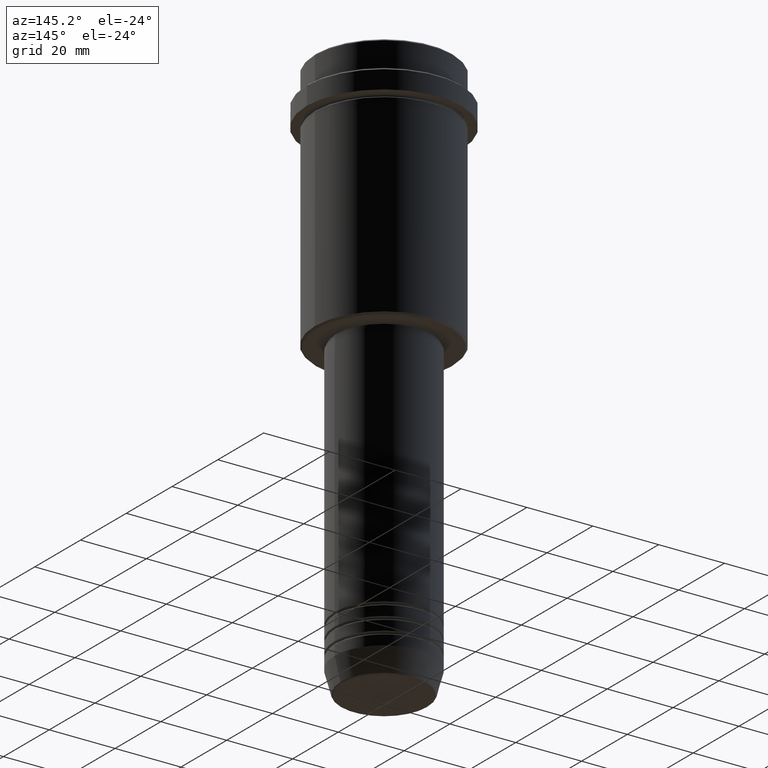
[diagram: clean part render]
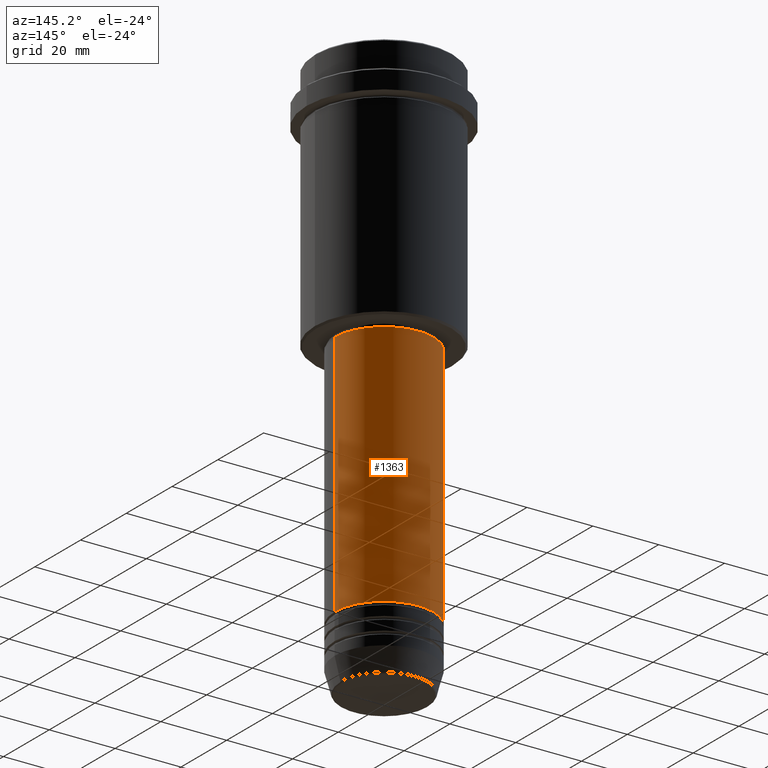
[diagram: same view with one face highlighted and labeled with its STEP entity id]
A machine part, auxiliary view. The second image highlights one B-rep face of the part: STEP entity #1363.
In plain terms, the highlighted cylindrical surface (partial cylindrical patch) has radius 15 mm, axis along (-0, -0, 1).
Its self-contained STEP definition (entity closure, byte-faithful):
#11 = VERTEX_POINT ( 'NONE', #1310 ) ;
#12 = EDGE_CURVE ( 'NONE', #790, #11, #1295, .T. ) ;
#65 = CARTESIAN_POINT ( 'NONE',  ( 15.00000000000000000, 0.000000000000000000, 0.000000000000000000 ) ) ;
#106 = ORIENTED_EDGE ( 'NONE', *, *, #12, .T. ) ;
#166 = CARTESIAN_POINT ( 'NONE',  ( -15.00000000000000000, 1.836970198721029589E-15, -76.00000000000001421 ) ) ;
#207 = DIRECTION ( 'NONE',  ( -0.000000000000000000, -0.000000000000000000, 1.000000000000000000 ) ) ;
#236 = CARTESIAN_POINT ( 'NONE',  ( -15.00000000000000000, 1.836970198721029589E-15, 0.000000000000000000 ) ) ;
#242 = AXIS2_PLACEMENT_3D ( 'NONE', #777, #335, #885 ) ;
#335 = DIRECTION ( 'NONE',  ( -0.000000000000000000, -0.000000000000000000, 1.000000000000000000 ) ) ;
#338 = VERTEX_POINT ( 'NONE', #166 ) ;
#345 = DIRECTION ( 'NONE',  ( -0.000000000000000000, -0.000000000000000000, 1.000000000000000000 ) ) ;
#351 = DIRECTION ( 'NONE',  ( 1.000000000000000000, 0.000000000000000000, 0.000000000000000000 ) ) ;
#401 = VECTOR ( 'NONE', #933, 1000.000000000000000 ) ;
#472 = CIRCLE ( 'NONE', #1277, 15.00000000000000000 ) ;
#556 = CYLINDRICAL_SURFACE ( 'NONE', #242, 15.00000000000000000 ) ;
#650 = DIRECTION ( 'NONE',  ( 1.000000000000000000, 0.000000000000000000, 0.000000000000000000 ) ) ;
#658 = VECTOR ( 'NONE', #676, 1000.000000000000000 ) ;
#676 = DIRECTION ( 'NONE',  ( -0.000000000000000000, -0.000000000000000000, 1.000000000000000000 ) ) ;
#770 = ORIENTED_EDGE ( 'NONE', *, *, #905, .F. ) ;
#777 = CARTESIAN_POINT ( 'NONE',  ( 0.000000000000000000, 0.000000000000000000, 0.000000000000000000 ) ) ;
#779 = CARTESIAN_POINT ( 'NONE',  ( 0.000000000000000000, 0.000000000000000000, -76.00000000000001421 ) ) ;
#790 = VERTEX_POINT ( 'NONE', #1324 ) ;
#791 = FACE_OUTER_BOUND ( 'NONE', #1026, .T. ) ;
#885 = DIRECTION ( 'NONE',  ( 1.000000000000000000, 0.000000000000000000, 0.000000000000000000 ) ) ;
#905 = EDGE_CURVE ( 'NONE', #1116, #338, #472, .T. ) ;
#912 = EDGE_CURVE ( 'NONE', #11, #338, #1222, .T. ) ;
#933 = DIRECTION ( 'NONE',  ( -0.000000000000000000, -0.000000000000000000, 1.000000000000000000 ) ) ;
#980 = EDGE_CURVE ( 'NONE', #790, #1116, #1270, .T. ) ;
#1026 = EDGE_LOOP ( 'NONE', ( #106, #1221, #770, #1269 ) ) ;
#1116 = VERTEX_POINT ( 'NONE', #1403 ) ;
#1221 = ORIENTED_EDGE ( 'NONE', *, *, #912, .T. ) ;
#1222 = LINE ( 'NONE', #236, #658 ) ;
#1269 = ORIENTED_EDGE ( 'NONE', *, *, #980, .F. ) ;
#1270 = LINE ( 'NONE', #65, #401 ) ;
#1277 = AXIS2_PLACEMENT_3D ( 'NONE', #779, #345, #351 ) ;
#1295 = CIRCLE ( 'NONE', #1369, 15.00000000000000000 ) ;
#1303 = CARTESIAN_POINT ( 'NONE',  ( 0.000000000000000000, 0.000000000000000000, -150.9999999999999147 ) ) ;
#1310 = CARTESIAN_POINT ( 'NONE',  ( -15.00000000000000000, 1.836970198721029589E-15, -150.9999999999999147 ) ) ;
#1324 = CARTESIAN_POINT ( 'NONE',  ( 15.00000000000000000, 0.000000000000000000, -150.9999999999999147 ) ) ;
#1363 = ADVANCED_FACE ( 'NONE', ( #791 ), #556, .T. ) ;
#1369 = AXIS2_PLACEMENT_3D ( 'NONE', #1303, #207, #650 ) ;
#1403 = CARTESIAN_POINT ( 'NONE',  ( 15.00000000000000000, 0.000000000000000000, -76.00000000000001421 ) ) ;